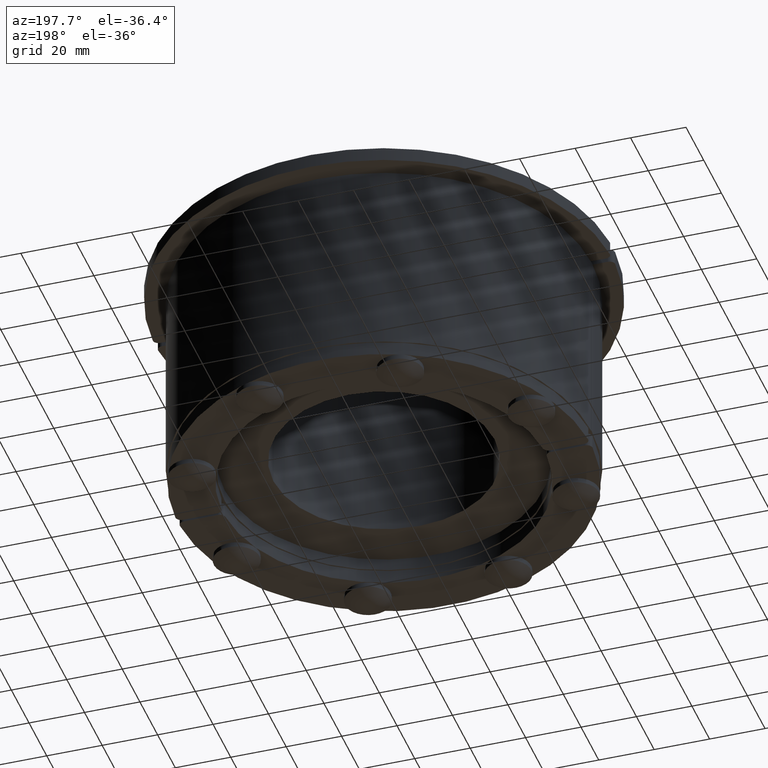
[diagram: clean part render]
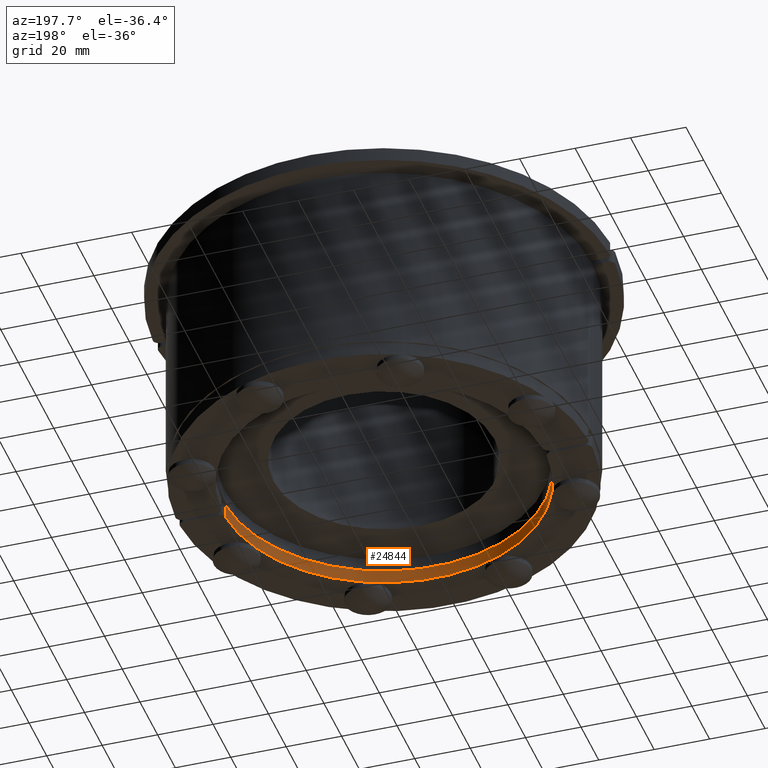
[diagram: same view with one face highlighted and labeled with its STEP entity id]
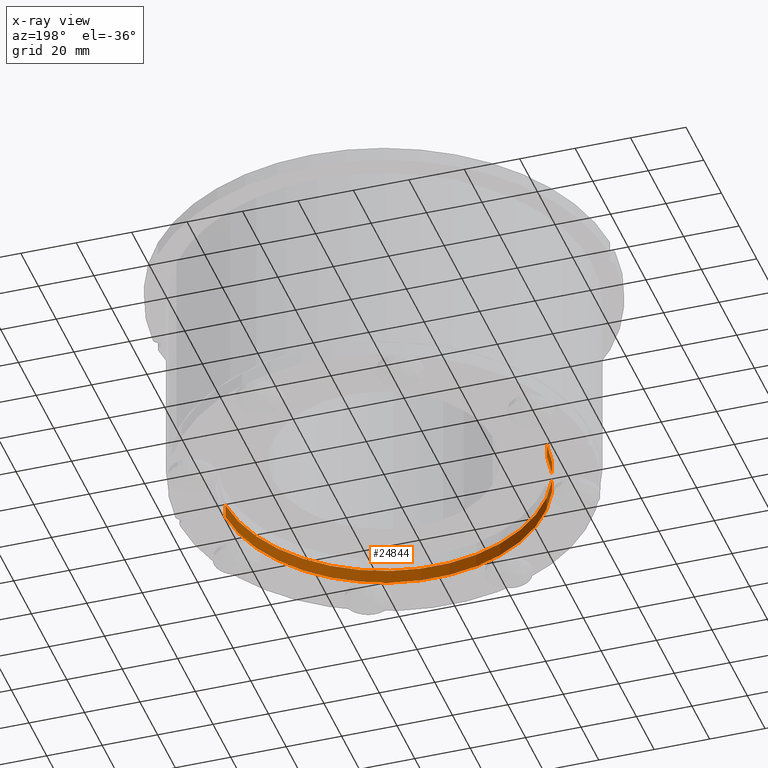
[diagram: x-ray of the same camera — body ghosted, the highlighted face saturated]
A machine part, auxiliary view. The second image highlights one B-rep face of the part: STEP entity #24844.
The next image is the same camera in x-ray: the body ghosted, the highlighted face saturated — about 0% of this face is hidden behind the body in this view.
In plain terms, the highlighted cylindrical surface (partial cylindrical patch) has radius 58 mm, axis along (0, 0, -1).
Its self-contained STEP definition (entity closure, byte-faithful):
#24594=CARTESIAN_POINT('',(-57.949630906695361,2.416666666666676,-5.0));
#24595=VERTEX_POINT('',#24594);
#24603=CARTESIAN_POINT('',(-57.949630906695361,2.416666666666676,0.0));
#24604=VERTEX_POINT('',#24603);
#24605=CARTESIAN_POINT('',(-57.949630906695361,2.416666666666676,-5.0));
#24606=DIRECTION('',(0.0,0.0,1.0));
#24607=VECTOR('',#24606,5.0);
#24608=LINE('',#24605,#24607);
#24609=EDGE_CURVE('',#24595,#24604,#24608,.T.);
#24666=CARTESIAN_POINT('',(57.949630906695361,2.416666666666667,0.0));
#24667=VERTEX_POINT('',#24666);
#24668=CARTESIAN_POINT('',(0.0,0.0,0.0));
#24669=DIRECTION('',(0.0,0.0,1.0));
#24670=DIRECTION('',(0.999962841164545,0.008620689655172,0.0));
#24671=AXIS2_PLACEMENT_3D('',#24668,#24669,#24670);
#24672=CIRCLE('',#24671,57.999999999999993);
#24673=EDGE_CURVE('',#24667,#24604,#24672,.T.);
#24800=CARTESIAN_POINT('',(57.949630906695361,2.416666666666667,-5.0));
#24801=VERTEX_POINT('',#24800);
#24818=CARTESIAN_POINT('',(57.949630906695361,2.416666666666666,0.0));
#24819=DIRECTION('',(0.0,0.0,-1.0));
#24820=VECTOR('',#24819,5.0);
#24821=LINE('',#24818,#24820);
#24822=EDGE_CURVE('',#24667,#24801,#24821,.T.);
#24827=CARTESIAN_POINT('',(0.0,0.0,0.0));
#24828=DIRECTION('',(0.0,0.0,-1.0));
#24829=DIRECTION('',(0.999962841164545,0.008620689655172,0.0));
#24830=AXIS2_PLACEMENT_3D('',#24827,#24828,#24829);
#24831=CYLINDRICAL_SURFACE('',#24830,58.0);
#24832=ORIENTED_EDGE('',*,*,#24609,.F.);
#24833=CARTESIAN_POINT('',(0.0,0.0,-5.0));
#24834=DIRECTION('',(0.0,0.0,1.0));
#24835=DIRECTION('',(0.999962841164545,0.008620689655172,0.0));
#24836=AXIS2_PLACEMENT_3D('',#24833,#24834,#24835);
#24837=CIRCLE('',#24836,57.999999999999993);
#24838=EDGE_CURVE('',#24801,#24595,#24837,.T.);
#24839=ORIENTED_EDGE('',*,*,#24838,.F.);
#24840=ORIENTED_EDGE('',*,*,#24822,.F.);
#24841=ORIENTED_EDGE('',*,*,#24673,.T.);
#24842=EDGE_LOOP('',(#24832,#24839,#24840,#24841));
#24843=FACE_OUTER_BOUND('',#24842,.T.);
#24844=ADVANCED_FACE('',(#24843),#24831,.F.);